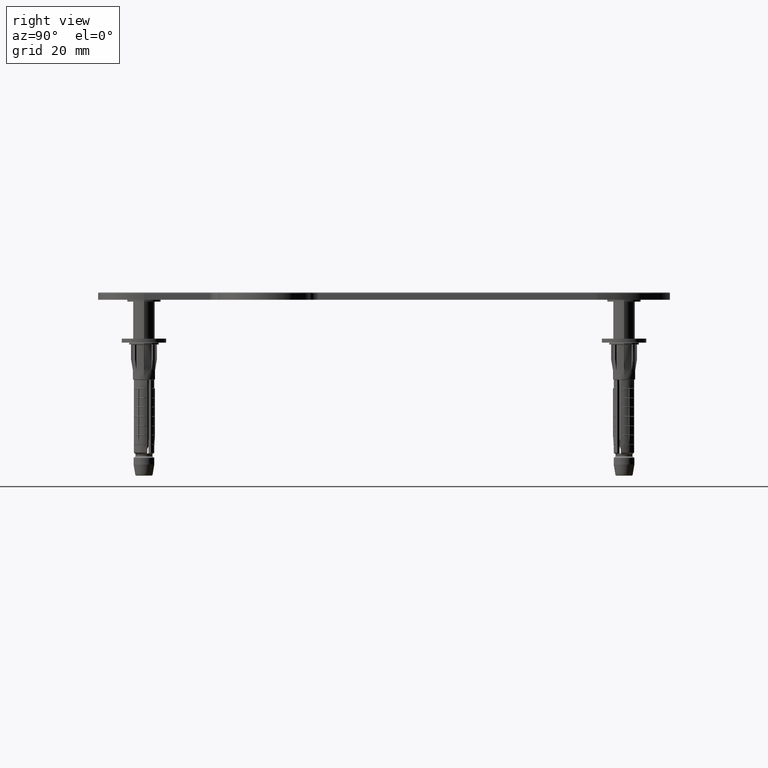
[diagram: clean part render]
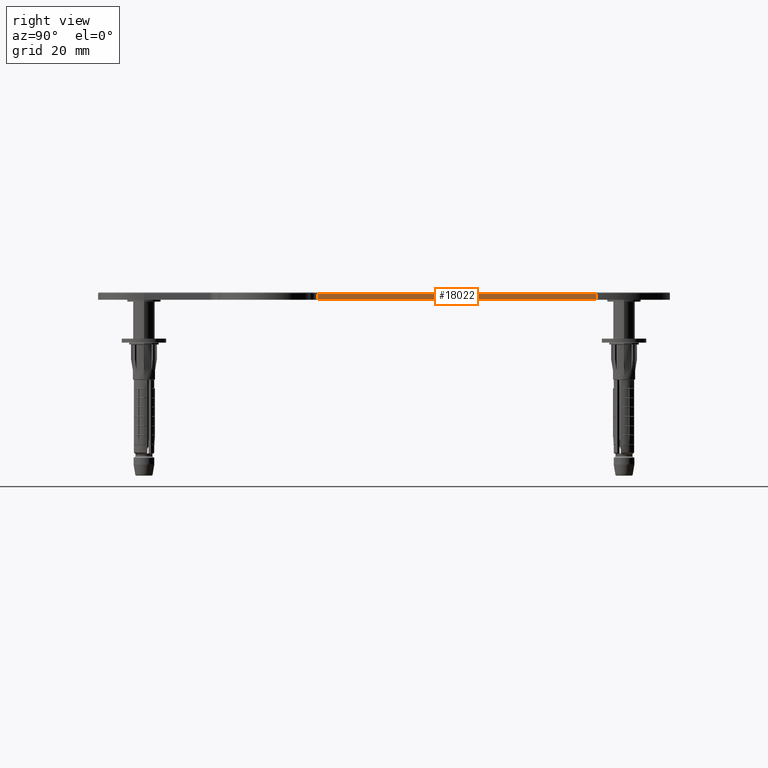
[diagram: same view with one face highlighted and labeled with its STEP entity id]
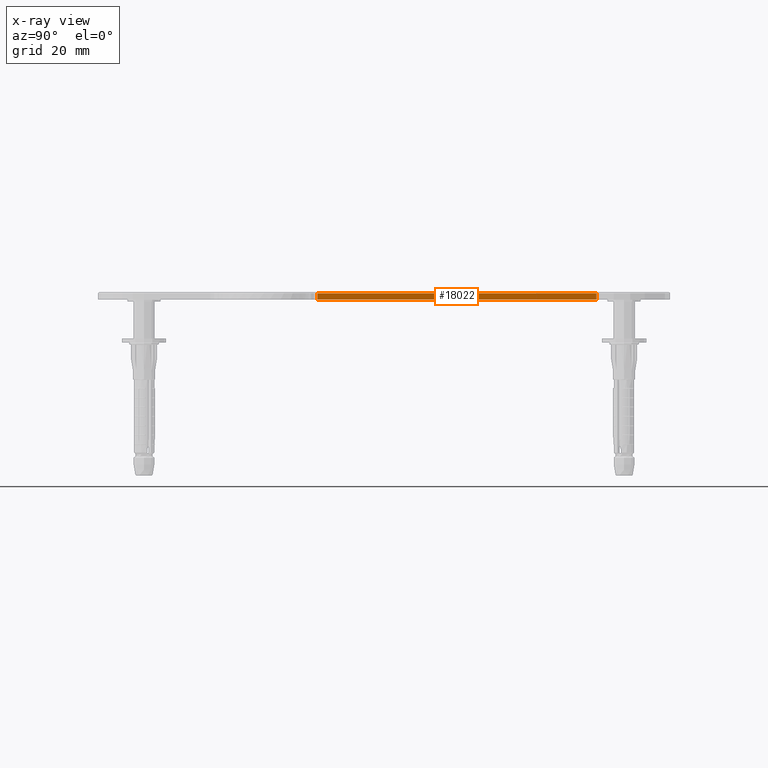
[diagram: x-ray of the same camera — body ghosted, the highlighted face saturated]
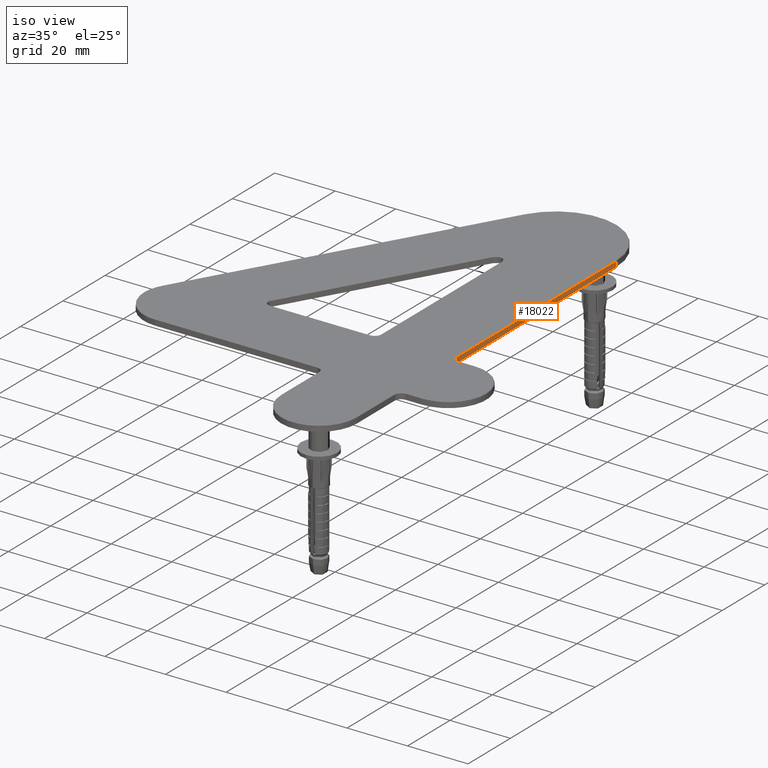
[diagram: same view with one face highlighted and labeled with its STEP entity id]
A machine part, right view. The second image highlights one B-rep face of the part: STEP entity #18022.
The next image is the same camera in x-ray: the body ghosted, the highlighted face saturated — about 0% of this face is hidden behind the body in this view.
A second angle (iso view) of the same face is appended — the face is thin or edge-on in the first view.
In plain terms, the highlighted planar face has unit normal (-1, 0, 0).
Its self-contained STEP definition (entity closure, byte-faithful):
#268 = CARTESIAN_POINT ( 'NONE',  ( 12.50000000000000178, 59.50000000000002842, 1.750000000000000000 ) ) ;
#808 = EDGE_CURVE ( 'NONE', #18301, #4839, #28704, .T. ) ;
#1888 = AXIS2_PLACEMENT_3D ( 'NONE', #22346, #4046, #16398 ) ;
#3027 = EDGE_CURVE ( 'NONE', #13982, #11079, #24554, .T. ) ;
#4046 = DIRECTION ( 'NONE',  ( -1.000000000000000000, 6.892940964146254661E-17, 0.000000000000000000 ) ) ;
#4152 = VECTOR ( 'NONE', #6538, 1000.000000000000000 ) ;
#4839 = VERTEX_POINT ( 'NONE', #268 ) ;
#5854 = PLANE ( 'NONE',  #1888 ) ;
#6538 = DIRECTION ( 'NONE',  ( 6.892940964146254661E-17, 1.000000000000000000, -0.000000000000000000 ) ) ;
#6955 = EDGE_CURVE ( 'NONE', #18301, #11079, #32975, .T. ) ;
#8865 = DIRECTION ( 'NONE',  ( -0.000000000000000000, -0.000000000000000000, -1.000000000000000000 ) ) ;
#9687 = EDGE_LOOP ( 'NONE', ( #14470, #27900, #28512, #32640 ) ) ;
#11079 = VERTEX_POINT ( 'NONE', #27185 ) ;
#12784 = FACE_OUTER_BOUND ( 'NONE', #9687, .T. ) ;
#12829 = CARTESIAN_POINT ( 'NONE',  ( 12.50000000000000178, 59.50000000000002842, 0.000000000000000000 ) ) ;
#13163 = CARTESIAN_POINT ( 'NONE',  ( 12.50000000000000711, 135.0000000000000000, 0.000000000000000000 ) ) ;
#13982 = VERTEX_POINT ( 'NONE', #12829 ) ;
#14146 = CARTESIAN_POINT ( 'NONE',  ( 12.50000000000000178, 59.50000000000002842, 1.750000000000000000 ) ) ;
#14264 = DIRECTION ( 'NONE',  ( -6.892940964146254661E-17, -1.000000000000000000, -0.000000000000000000 ) ) ;
#14470 = ORIENTED_EDGE ( 'NONE', *, *, #6955, .F. ) ;
#15233 = LINE ( 'NONE', #34026, #16636 ) ;
#16398 = DIRECTION ( 'NONE',  ( -6.892940964146254661E-17, -1.000000000000000000, 0.000000000000000000 ) ) ;
#16636 = VECTOR ( 'NONE', #37174, 1000.000000000000000 ) ;
#16682 = EDGE_CURVE ( 'NONE', #4839, #13982, #15233, .T. ) ;
#17501 = CARTESIAN_POINT ( 'NONE',  ( 12.50000000000001776, 135.0000000000000000, 1.750000000000000000 ) ) ;
#18022 = ADVANCED_FACE ( 'NONE', ( #12784 ), #5854, .F. ) ;
#18301 = VERTEX_POINT ( 'NONE', #17501 ) ;
#18392 = VECTOR ( 'NONE', #14264, 1000.000000000000000 ) ;
#22346 = CARTESIAN_POINT ( 'NONE',  ( 12.50000000000000711, 135.0000000000000000, 2.000000000000000000 ) ) ;
#24554 = LINE ( 'NONE', #13163, #4152 ) ;
#27185 = CARTESIAN_POINT ( 'NONE',  ( 12.50000000000001776, 135.0000000000000000, 0.000000000000000000 ) ) ;
#27900 = ORIENTED_EDGE ( 'NONE', *, *, #808, .T. ) ;
#28512 = ORIENTED_EDGE ( 'NONE', *, *, #16682, .T. ) ;
#28704 = LINE ( 'NONE', #14146, #18392 ) ;
#31529 = VECTOR ( 'NONE', #8865, 1000.000000000000000 ) ;
#32640 = ORIENTED_EDGE ( 'NONE', *, *, #3027, .T. ) ;
#32677 = CARTESIAN_POINT ( 'NONE',  ( 12.50000000000001776, 135.0000000000000000, 2.000000000000000000 ) ) ;
#32975 = LINE ( 'NONE', #32677, #31529 ) ;
#34026 = CARTESIAN_POINT ( 'NONE',  ( 12.50000000000000178, 59.50000000000002842, 2.000000000000000000 ) ) ;
#37174 = DIRECTION ( 'NONE',  ( -0.000000000000000000, -0.000000000000000000, -1.000000000000000000 ) ) ;